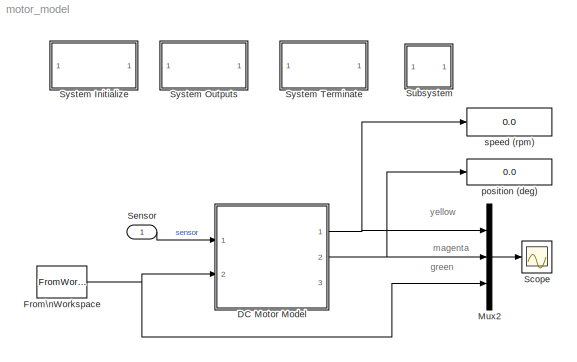
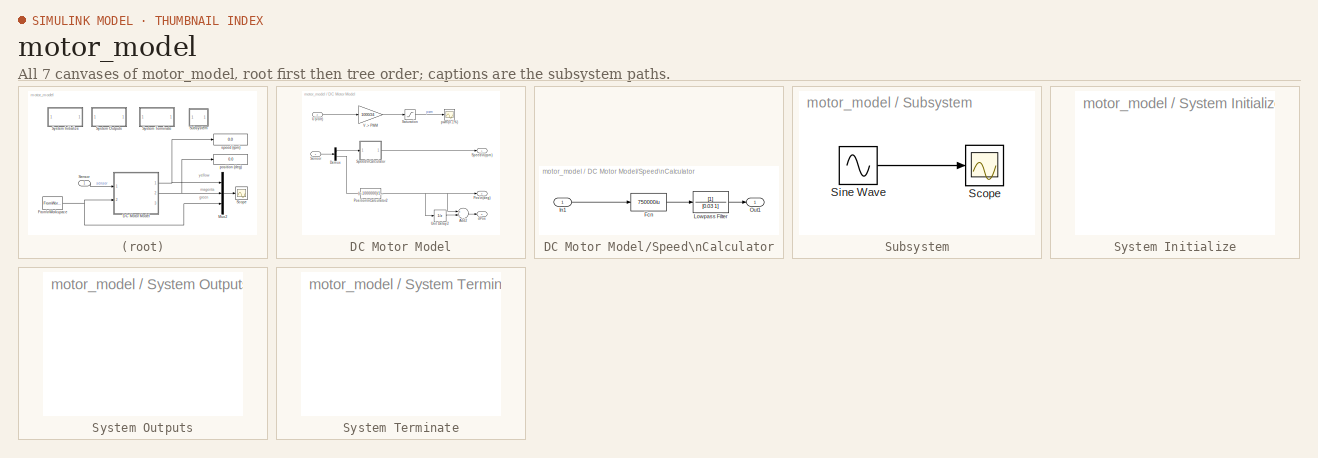
[diagram: thumbnail index - all 7 canvases of the model, root first then tree order]
MODEL motor_model
KIND model
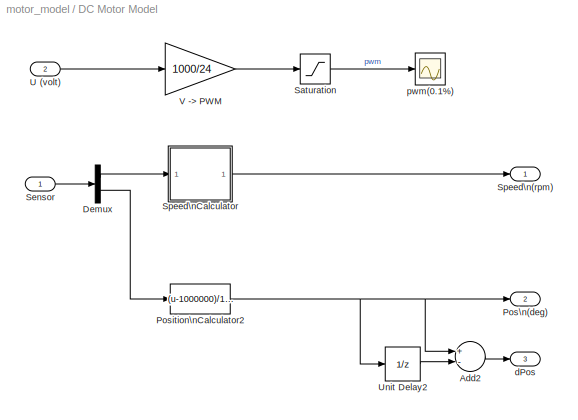
BLOCK [SubSystem] DC Motor Model
  FunctionWithSeparateData = off
  MaskHideContents = off
  MinAlgLoopOccurrences = off
  Opaque = off
  Ports = [2, 3]
  PropExecContextOutsideSubsystem = off
  RTWSystemCode = Auto
  RequestExecContextInheritance = off
  SID = 2
BLOCK [Sum] DC Motor Model/Add2
  InputSameDT = off
  Inputs = +-
  OutDataType = sfix(16)
  OutDataTypeMode = Inherit via internal rule
  OutDataTypeStr = Inherit: Inherit via internal rule
  OutScaling = 2^-10
  Ports = [2, 1]
  SID = 5
  SaturateOnIntegerOverflow = off
BLOCK [Demux] DC Motor Model/Demux
  DisplayOption = bar
  Outputs = 2
  Ports = [1, 2]
  SID = 6
BLOCK [Outport] DC Motor Model/Pos\n(deg)
  IconDisplay = Port number
  OutDataType = sfix(16)
  OutScaling = 2^0
  Port = 2
  SID = 18
BLOCK [Fcn] DC Motor Model/Position\nCalculator2
  Expr = (u-1000000)/1600*360
  SID = 7
BLOCK [Saturate] DC Motor Model/Saturation
  LowerLimit = -800
  SID = 8
  UpperLimit = 800
BLOCK [Inport] DC Motor Model/Sensor
  IconDisplay = Port number
  OutDataType = sfix(16)
  OutScaling = 2^0
  PortDimensions = 2
  SID = 3
BLOCK [Outport] DC Motor Model/Speed\n(rpm)
  IconDisplay = Port number
  OutDataType = sfix(16)
  OutScaling = 2^0
  SID = 17
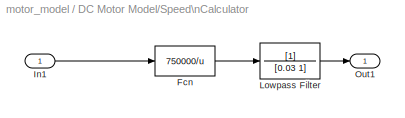
BLOCK [SubSystem] DC Motor Model/Speed\nCalculator
  FunctionWithSeparateData = off
  MaskHideContents = off
  MinAlgLoopOccurrences = off
  Opaque = off
  Ports = [1, 1]
  PropExecContextOutsideSubsystem = off
  RTWSystemCode = Auto
  RequestExecContextInheritance = off
  SID = 9
BLOCK [Fcn] DC Motor Model/Speed\nCalculator/Fcn
  Expr = 750000/u
  SID = 11
BLOCK [Inport] DC Motor Model/Speed\nCalculator/In1
  IconDisplay = Port number
  OutDataType = sfix(16)
  OutScaling = 2^0
  SID = 10
BLOCK [TransferFcn] DC Motor Model/Speed\nCalculator/Lowpass Filter
  Denominator = [0.03 1]
  SID = 12
BLOCK [Outport] DC Motor Model/Speed\nCalculator/Out1
  IconDisplay = Port number
  OutDataType = sfix(16)
  OutScaling = 2^0
  SID = 13
BLOCK [Inport] DC Motor Model/U (volt)
  IconDisplay = Port number
  OutDataType = sfix(16)
  OutScaling = 2^0
  Port = 2
  PortDimensions = 1
  SID = 4
BLOCK [UnitDelay] DC Motor Model/Unit Delay2
  SID = 14
  SampleTime = -1
BLOCK [Gain] DC Motor Model/V -> PWM
  Gain = 1000/24
  OutDataType = sfix(16)
  OutDataTypeMode = Inherit via internal rule
  OutDataTypeStr = Inherit: Inherit via internal rule
  OutScaling = 2^0
  ParameterDataType = sfix(16)
  ParameterScaling = 2^0
  SID = 15
  SaturateOnIntegerOverflow = off
BLOCK [Outport] DC Motor Model/dPos
  IconDisplay = Port number
  OutDataType = sfix(16)
  OutScaling = 2^0
  Port = 3
  SID = 19
BLOCK [Scope] DC Motor Model/pwm(0.1%)
  DataFormat = Array
  Floating = off
  LimitDataPoints = off
  NumInputPorts = 1
  Ports = [1]
  SID = 16
  SampleTime = 0
  SaveName = ScopeData3
  SaveToWorkspace = on
  YMax = 1100
  YMin = -1100
BLOCK [FromWorkspace] From\nWorkspace
  SID = 20
  SampleTime = T
  VariableName = uu
  ZeroCross = on
BLOCK [Mux] Mux2
  DisplayOption = bar
  Inputs = 3
  Ports = [3, 1]
  SID = 21
BLOCK [Scope] Scope
  DataFormat = StructureWithTime
  Floating = off
  LimitDataPoints = off
  NumInputPorts = 1
  Ports = [1]
  SID = 22
  SampleTime = 0
  SaveToWorkspace = on
BLOCK [Inport] Sensor
  IconDisplay = Port number
  OutDataType = sfix(16)
  OutScaling = 2^0
  PortDimensions = 2
  SID = 1
BLOCK [SubSystem] Subsystem
  FunctionWithSeparateData = off
  MaskHideContents = off
  MinAlgLoopOccurrences = off
  Opaque = off
  Ports = []
  PropExecContextOutsideSubsystem = off
  RTWSystemCode = Auto
  RequestExecContextInheritance = off
  SID = 28
  TreatAsAtomicUnit = on
BLOCK [Scope] Subsystem/Scope
  DataFormat = StructureWithTime
  Floating = off
  NumInputPorts = 1
  Ports = [1]
  SID = 29
  SampleTime = 0
  SaveName = ScopeData1
BLOCK [Sin] Subsystem/Sine Wave
  Amplitude = 1
  Bias = 0
  Frequency = 1
  Offset = 0
  Phase = 0
  Ports = [0, 1]
  SID = 30
  SampleTime = 0
  Samples = 10
BLOCK [SubSystem] System Initialize
  CopyFcn = cccopyfcn(gcb)
  FunctionWithSeparateData = off
  MaskDescription = Add code to a systems Initialize function
  MaskDisplay = disp('System\\nInitialize');
  MaskEnableString = off
  MaskHelp = This block contains text fields to insert custom user code sections at the declaration, execution and exit sections of the systems initialize function.  By placing this block inside a subsytem, the custom user code will appear in that subsystems function.
  MaskHideContents = off
  MaskIconFrame = on
  MaskIconOpaque = on
  MaskIconRotate = none
  MaskIconUnits = autoscale
  MaskPortRotate = default
  MaskPromptString = Mask Parameter 1:
  MaskStyleString = edit
  MaskToolTipString = on
  MaskTunableValueString = on
  MaskType = System Initialize
  MaskValueString = 0
  MaskVariables = ShowInLibBrowser=@1;
  MaskVisibilityString = off
  MinAlgLoopOccurrences = off
  Opaque = off
  OpenFcn = ccopenfcn('System Initialize Function')
  Ports = []
  PropExecContextOutsideSubsystem = off
  RTWSystemCode = Auto
  RequestExecContextInheritance = off
  SID = 23
BLOCK [SubSystem] System Outputs
  CopyFcn = cccopyfcn(gcb)
  FunctionWithSeparateData = off
  MaskDescription = Add code to a systems Outputs function
  MaskDisplay = disp('System\\nOutputs');
  MaskEnableString = off
  MaskHelp = This block contains text fields to insert custom user code sections at the declaration, execution and exit sections of the systems outputs function.  By placing this block inside a subsytem, the custom user code will appear in that subsystems function.
  MaskHideContents = off
  MaskIconFrame = on
  MaskIconOpaque = on
  MaskIconRotate = none
  MaskIconUnits = autoscale
  MaskPortRotate = default
  MaskPromptString = Mask Parameter 1:
  MaskStyleString = edit
  MaskToolTipString = on
  MaskTunableValueString = on
  MaskType = System Outputs
  MaskValueString = 0
  MaskVariables = ShowInLibBrowser=@1;
  MaskVisibilityString = off
  MinAlgLoopOccurrences = off
  Opaque = off
  OpenFcn = ccopenfcn('System Outputs Function')
  Ports = []
  PropExecContextOutsideSubsystem = off
  RTWSystemCode = Auto
  RequestExecContextInheritance = off
  SID = 24
BLOCK [SubSystem] System Terminate
  CopyFcn = cccopyfcn(gcb)
  FunctionWithSeparateData = off
  MaskDescription = Add code to a systems Terminate function
  MaskDisplay = disp('System\\nTerminate');
  MaskEnableString = off
  MaskHelp = This block contains text fields to insert custom user code sections at the declaration, execution and exit sections of the systems terminate function.  By placing this block inside a subsytem, the custom user code will appear in that subsystems function.
  MaskHideContents = off
  MaskIconFrame = on
  MaskIconOpaque = on
  MaskIconRotate = none
  MaskIconUnits = autoscale
  MaskPortRotate = default
  MaskPromptString = Mask Parameter 1:
  MaskStyleString = edit
  MaskToolTipString = on
  MaskTunableValueString = on
  MaskType = System Terminate
  MaskValueString = 0
  MaskVariables = ShowInLibBrowser=@1;
  MaskVisibilityString = off
  MinAlgLoopOccurrences = off
  Opaque = off
  OpenFcn = ccopenfcn('System Terminate Function')
  Ports = []
  PropExecContextOutsideSubsystem = off
  RTWSystemCode = Auto
  RequestExecContextInheritance = off
  SID = 25
BLOCK [Display] position (deg)
  Decimation = 1
  Lockdown = off
  Ports = [1]
  SID = 26
BLOCK [Display] speed (rpm)
  Decimation = 1
  Lockdown = off
  Ports = [1]
  SID = 27
ANNOTATION (root): green
ANNOTATION (root): magenta
ANNOTATION (root): yellow
LINE DC Motor Model/Add2:1 -> DC Motor Model/dPos:1
LINE DC Motor Model/Demux:1 -> DC Motor Model/Speed\nCalculator:1
LINE DC Motor Model/Demux:2 -> DC Motor Model/Position\nCalculator2:1
NET DC Motor Model/Position\nCalculator2:1 -> DC Motor Model/Add2:1, DC Motor Model/Pos\n(deg):1, DC Motor Model/Unit Delay2:1
LINE DC Motor Model/Saturation:1 -> DC Motor Model/pwm(0.1%):1
LINE DC Motor Model/Sensor:1 -> DC Motor Model/Demux:1
LINE DC Motor Model/Speed\nCalculator/Fcn:1 -> DC Motor Model/Speed\nCalculator/Lowpass Filter:1
LINE DC Motor Model/Speed\nCalculator/In1:1 -> DC Motor Model/Speed\nCalculator/Fcn:1
LINE DC Motor Model/Speed\nCalculator/Lowpass Filter:1 -> DC Motor Model/Speed\nCalculator/Out1:1
LINE DC Motor Model/Speed\nCalculator:1 -> DC Motor Model/Speed\n(rpm):1
LINE DC Motor Model/U (volt):1 -> DC Motor Model/V -> PWM:1
LINE DC Motor Model/Unit Delay2:1 -> DC Motor Model/Add2:2
LINE DC Motor Model/V -> PWM:1 -> DC Motor Model/Saturation:1
NET DC Motor Model:1 -> Mux2:1, speed (rpm):1
NET DC Motor Model:2 -> Mux2:2, position (deg):1
NET From\nWorkspace:1 -> DC Motor Model:2, Mux2:3
LINE Mux2:1 -> Scope:1
LINE Sensor:1 -> DC Motor Model:1
LINE Subsystem/Sine Wave:1 -> Subsystem/Scope:1
note: NET lines group one-source signal fan-out (src -> all destinations, sorted); 1:1 wires keep LINE
